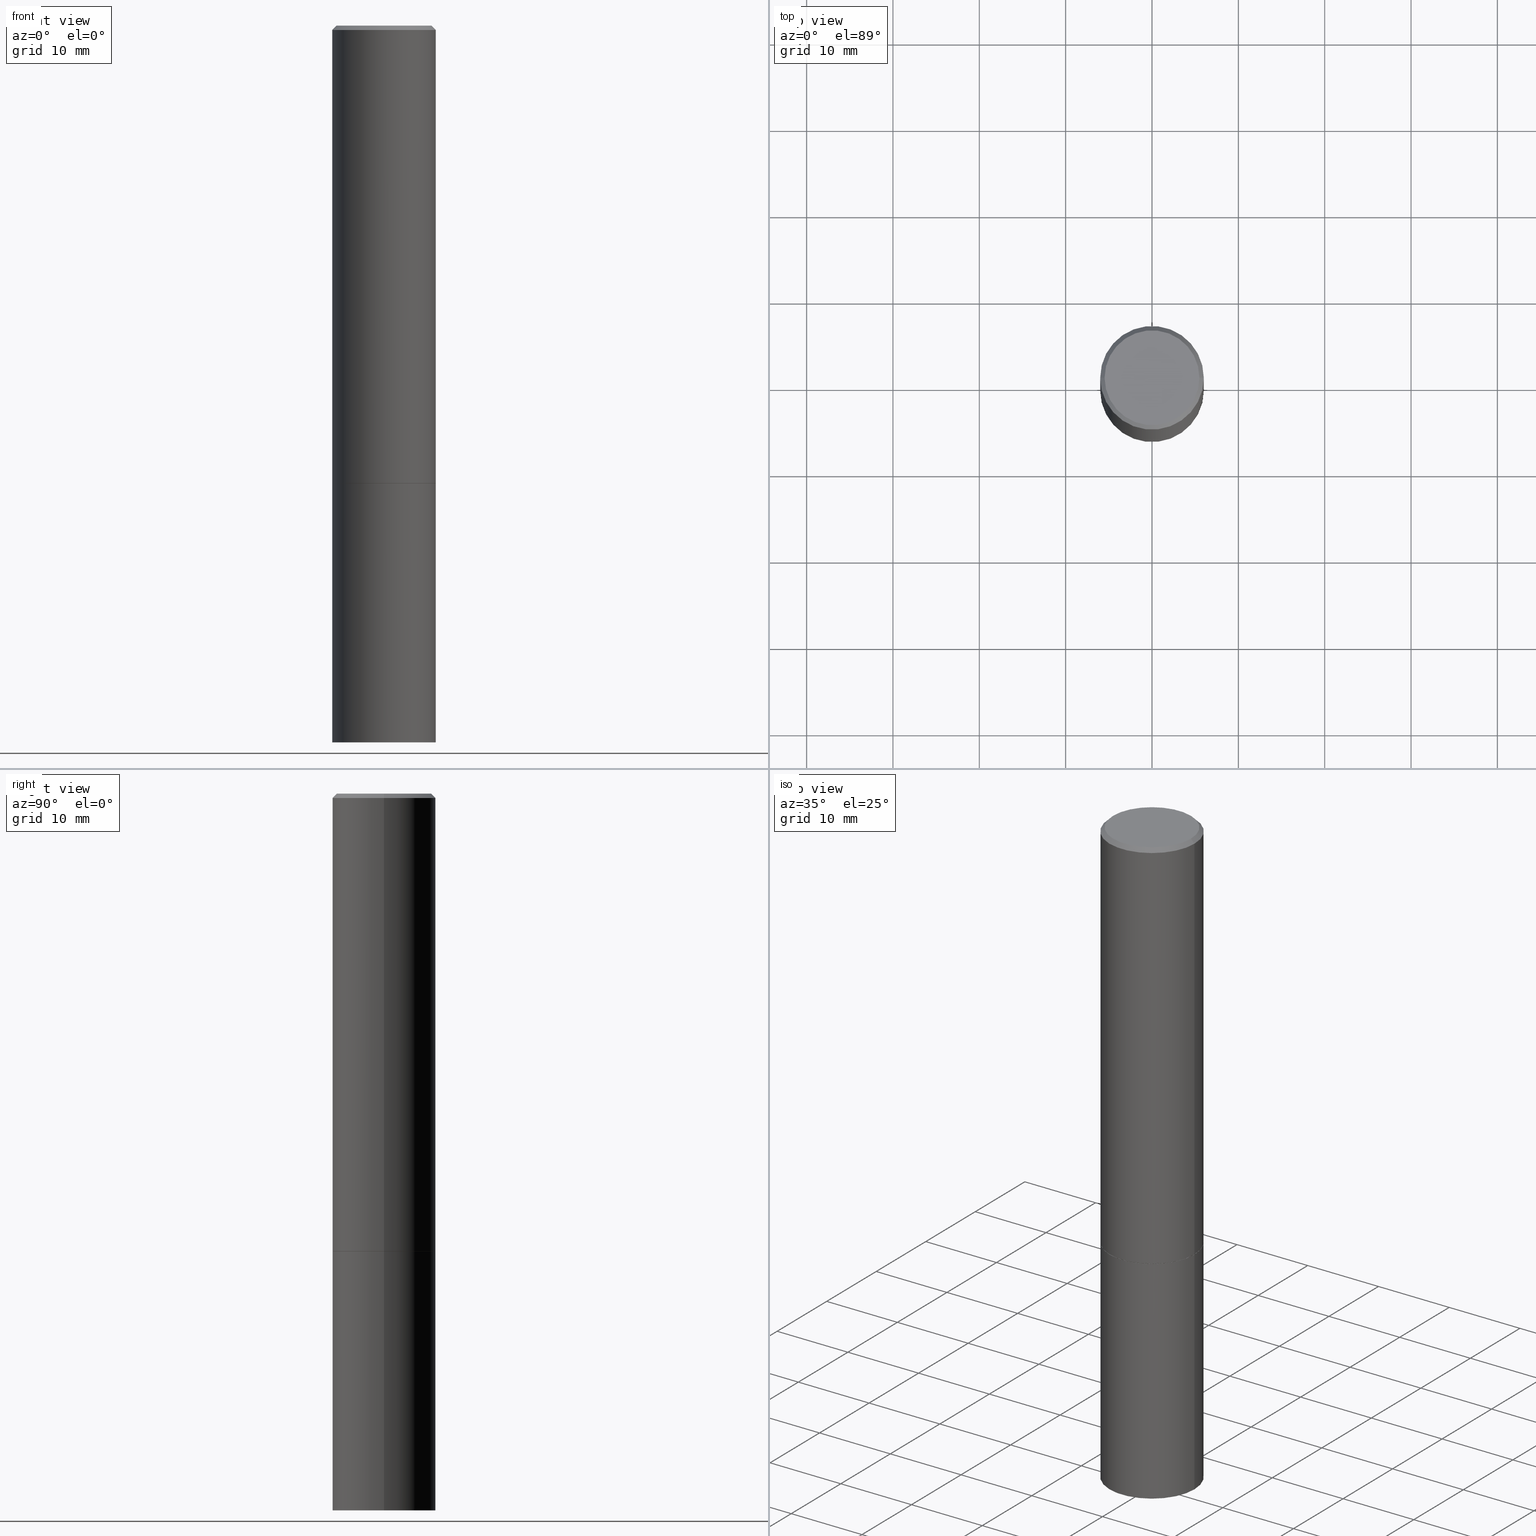
[diagram: canonical four-view strip — front | top / right | iso, engineering-drawing reading convention]
A machine part, canonical four-view strip (front | top / right | iso — engineering-drawing reading convention). The complete STEP part file that produces these views, byte-faithful:
ISO-10303-21;
HEADER;
FILE_DESCRIPTION (( 'STEP AP203' ),
    '1' );
FILE_NAME ('74674.STEP',
    '2024-05-03T15:03:19',
    ( '' ),
    ( '' ),
    'SwSTEP 2.0',
    'SolidWorks 2023',
    '' );
FILE_SCHEMA (( 'CONFIG_CONTROL_DESIGN' ));
ENDSEC;

DATA;
#1 = EDGE_CURVE ( 'NONE', #232, #314, #76, .T. ) ;
#2 = ORIENTED_EDGE ( 'NONE', *, *, #202, .F. ) ;
#3 = DIRECTION ( 'NONE',  ( -1.000000000000000000, 6.982962677686265922E-15, -4.876176775795935793E-29 ) ) ;
#4 = APPLICATION_CONTEXT ( 'configuration controlled 3d designs of mechanical parts and assemblies' ) ;
#5 = CARTESIAN_POINT ( 'NONE',  ( 5.102715210985906276E-29, -7.285324961630107416E-15, -2.086600000000000232 ) ) ;
#6 = CC_DESIGN_DATE_AND_TIME_ASSIGNMENT ( #130, #194, ( #191 ) ) ;
#7 = DIRECTION ( 'NONE',  ( -2.445468806185136597E-29, 3.491481338843145583E-15, 1.000000000000000000 ) ) ;
#8 = DIRECTION ( 'NONE',  ( 1.000000000000000000, -6.982962677686268288E-15, 0.000000000000000000 ) ) ;
#9 = PERSON_AND_ORGANIZATION_ROLE ( 'creator' ) ;
#10 = VERTEX_POINT ( 'NONE', #337 ) ;
#11 = ORIENTED_EDGE ( 'NONE', *, *, #228, .F. ) ;
#12 = CIRCLE ( 'NONE', #242, 0.2361999999999997990 ) ;
#13 = AXIS2_PLACEMENT_3D ( 'NONE', #251, #332, #359 ) ;
#14 = ORIENTED_EDGE ( 'NONE', *, *, #159, .F. ) ;
#15 = PRODUCT_RELATED_PRODUCT_CATEGORY ( 'detail', '', ( #164 ) ) ;
#16 = EDGE_CURVE ( 'NONE', #168, #110, #140, .T. ) ;
#17 = ORGANIZATION ( 'UNSPECIFIED', 'UNSPECIFIED', '' ) ;
#18 = EDGE_CURVE ( 'NONE', #110, #236, #253, .T. ) ;
#19 = CARTESIAN_POINT ( 'NONE',  ( 4.890937612370288047E-31, -6.982962677686311331E-17, -0.02000000000000005940 ) ) ;
#20 = PERSON_AND_ORGANIZATION ( #298, #17 ) ;
#21 = PRODUCT_DEFINITION_SHAPE ( 'NONE', 'NONE',  #131 ) ;
#22 = PERSON_AND_ORGANIZATION ( #298, #17 ) ;
#23 = DIRECTION ( 'NONE',  ( 2.438088387897960049E-29, -3.491481338843145188E-15, -1.000000000000000000 ) ) ;
#24 = CARTESIAN_POINT ( 'NONE',  ( 5.102715210985906276E-29, -7.285324961630107416E-15, -2.086600000000000232 ) ) ;
#25 = APPROVAL_STATUS ( 'not_yet_approved' ) ;
#26 = AXIS2_PLACEMENT_3D ( 'NONE', #238, #207, #261 ) ;
#27 = CIRCLE ( 'NONE', #102, 0.2361999999999999933 ) ;
#28 = VERTEX_POINT ( 'NONE', #32 ) ;
#29 = COORDINATED_UNIVERSAL_TIME_OFFSET ( 5, 0, .BEHIND. ) ;
#30 = ORIENTED_EDGE ( 'NONE', *, *, #155, .T. ) ;
#31 = LINE ( 'NONE', #240, #214 ) ;
#32 = CARTESIAN_POINT ( 'NONE',  ( -0.2161999999999997535, 1.544631344304200395E-15, 2.134256245049137596E-17 ) ) ;
#33 = EDGE_LOOP ( 'NONE', ( #299, #121 ) ) ;
#34 = DIRECTION ( 'NONE',  ( 1.000000000000000000, -6.982962677686266711E-15, 4.876176775795935793E-29 ) ) ;
#35 = DIRECTION ( 'NONE',  ( -2.438088387897960049E-29, 3.491481338843145188E-15, 1.000000000000000000 ) ) ;
#36 = EDGE_CURVE ( 'NONE', #10, #28, #273, .T. ) ;
#37 = DIRECTION ( 'NONE',  ( -2.445468806185136877E-29, 3.491481338843145188E-15, 1.000000000000000000 ) ) ;
#38 = CYLINDRICAL_SURFACE ( 'NONE', #323, 0.2361999999999999933 ) ;
#39 = DIRECTION ( 'NONE',  ( 1.000000000000000000, -6.982962677686267499E-15, 4.876655451117831128E-29 ) ) ;
#40 = ORIENTED_EDGE ( 'NONE', *, *, #190, .F. ) ;
#41 = LINE ( 'NONE', #279, #289 ) ;
#42 = CARTESIAN_POINT ( 'NONE',  ( -0.2361999999999999933, -7.668917324418570534E-15, -3.267700000000000049 ) ) ;
#43 = EDGE_LOOP ( 'NONE', ( #158, #145 ) ) ;
#44 = EDGE_CURVE ( 'NONE', #73, #236, #169, .T. ) ;
#45 =( LENGTH_UNIT ( ) NAMED_UNIT ( * ) SI_UNIT ( $, .METRE. ) );
#46 = APPROVAL ( #230, 'UNSPECIFIED' ) ;
#47 = AXIS2_PLACEMENT_3D ( 'NONE', #269, #86, #200 ) ;
#48 = AXIS2_PLACEMENT_3D ( 'NONE', #118, #344, #95 ) ;
#49 = CC_DESIGN_APPROVAL ( #283, ( #131 ) ) ;
#50 = FACE_OUTER_BOUND ( 'NONE', #66, .T. ) ;
#51 = ORIENTED_EDGE ( 'NONE', *, *, #44, .F. ) ;
#52 = CARTESIAN_POINT ( 'NONE',  ( 0.2351999999999999924, -8.927717783421917927E-15, -2.086600000000000232 ) ) ;
#53 = ORIENTED_EDGE ( 'NONE', *, *, #190, .T. ) ;
#54 = CARTESIAN_POINT ( 'NONE',  ( 5.102715210985906276E-29, -7.285324961630107416E-15, -2.086600000000000232 ) ) ;
#55 = CC_DESIGN_PERSON_AND_ORGANIZATION_ASSIGNMENT ( #358, #341, ( #231 ) ) ;
#56 = ORIENTED_EDGE ( 'NONE', *, *, #36, .F. ) ;
#57 = FACE_OUTER_BOUND ( 'NONE', #184, .T. ) ;
#58 = CIRCLE ( 'NONE', #96, 0.2351999999999999924 ) ;
#59 = ORIENTED_EDGE ( 'NONE', *, *, #217, .T. ) ;
#60 = CARTESIAN_POINT ( 'NONE',  ( 7.991058417971171713E-29, -1.140911357093774644E-14, -3.267700000000000049 ) ) ;
#61 = EDGE_CURVE ( 'NONE', #168, #73, #220, .T. ) ;
#62 = CALENDAR_DATE ( 2024, 3, 5 ) ;
#63 = DIRECTION ( 'NONE',  ( 1.000000000000000000, -6.982962677686264344E-15, 0.000000000000000000 ) ) ;
#64 = CARTESIAN_POINT ( 'NONE',  ( -0.2361999999999999933, 1.678301941865356591E-15, -1.161852468318208757E-29 ) ) ;
#65 = APPROVAL_DATE_TIME ( #258, #83 ) ;
#66 = EDGE_LOOP ( 'NONE', ( #56, #30, #239, #224 ) ) ;
#67 = DIRECTION ( 'NONE',  ( 1.000000000000000000, -6.982962677686265133E-15, 0.000000000000000000 ) ) ;
#68 = CARTESIAN_POINT ( 'NONE',  ( 5.102715210985906276E-29, -7.285324961630107416E-15, -2.086600000000000232 ) ) ;
#69 = VECTOR ( 'NONE', #120, 39.37007874015748143 ) ;
#70 = CARTESIAN_POINT ( 'NONE',  ( 1.509716530915769140E-15, 0.2161999999999997535, -7.441869842326362643E-16 ) ) ;
#71 = COORDINATED_UNIVERSAL_TIME_OFFSET ( 5, 0, .BEHIND. ) ;
#72 = DIRECTION ( 'NONE',  ( 1.000000000000000000, -6.982962677686265133E-15, 0.000000000000000000 ) ) ;
#73 = VERTEX_POINT ( 'NONE', #285 ) ;
#74 = APPROVAL_PERSON_ORGANIZATION ( #20, #283, #129 ) ;
#75 = EDGE_CURVE ( 'NONE', #113, #171, #101, .T. ) ;
#76 = CIRCLE ( 'NONE', #205, 0.2362000000000000210 ) ;
#77 = APPLICATION_PROTOCOL_DEFINITION ( 'international standard', 'config_control_design', 1994, #88 ) ;
#78 = CC_DESIGN_PERSON_AND_ORGANIZATION_ASSIGNMENT ( #320, #9, ( #131 ) ) ;
#79 = CARTESIAN_POINT ( 'NONE',  ( 0.2351999999999999924, -8.927717783421917927E-15, -2.086600000000000232 ) ) ;
#80 = CARTESIAN_POINT ( 'NONE',  ( -5.219257071676098903E-46, 7.451715851902235727E-32, 2.134256245050205639E-17 ) ) ;
#81 = ORIENTED_EDGE ( 'NONE', *, *, #107, .F. ) ;
#82 = DIRECTION ( 'NONE',  ( -2.445468806185136877E-29, 3.491481338843145188E-15, 1.000000000000000000 ) ) ;
#83 = APPROVAL ( #25, 'UNSPECIFIED' ) ;
#84 = CARTESIAN_POINT ( 'NONE',  ( -0.2361999999999999933, -7.668917324418570534E-15, -2.086600000000000232 ) ) ;
#85 = ADVANCED_FACE ( 'NONE', ( #179 ), #364, .T. ) ;
#86 = DIRECTION ( 'NONE',  ( -2.445468806185136597E-29, 3.491481338843145583E-15, 1.000000000000000000 ) ) ;
#87 = ORIENTED_EDGE ( 'NONE', *, *, #150, .T. ) ;
#88 = APPLICATION_CONTEXT ( 'configuration controlled 3d designs of mechanical parts and assemblies' ) ;
#89 = EDGE_CURVE ( 'NONE', #255, #252, #58, .T. ) ;
#90 = CARTESIAN_POINT ( 'NONE',  ( -0.2361999999999997990, 1.579546157692631649E-15, -0.02000000000000005940 ) ) ;
#91 = DIRECTION ( 'NONE',  ( -2.445468806185136597E-29, 3.491481338843145583E-15, 1.000000000000000000 ) ) ;
#92 = DIRECTION ( 'NONE',  ( -2.445468806185136597E-29, 3.491481338843145583E-15, 1.000000000000000000 ) ) ;
#93 = CARTESIAN_POINT ( 'NONE',  ( 5.102715210985906276E-29, -7.285324961630107416E-15, -2.086600000000000232 ) ) ;
#94 = DATE_AND_TIME ( #270, #201 ) ;
#95 = DIRECTION ( 'NONE',  ( -1.000000000000000000, 6.982962677686266711E-15, 0.000000000000000000 ) ) ;
#96 = AXIS2_PLACEMENT_3D ( 'NONE', #24, #181, #148 ) ;
#97 = VECTOR ( 'NONE', #37, 39.37007874015748143 ) ;
#98 = CIRCLE ( 'NONE', #221, 0.2161999999999997535 ) ;
#99 = ADVANCED_FACE ( 'NONE', ( #319 ), #209, .F. ) ;
#100 = LOCAL_TIME ( 11, 3, 19.00000000000000000, #198 ) ;
#101 = CIRCLE ( 'NONE', #47, 0.2361999999999997990 ) ;
#102 = AXIS2_PLACEMENT_3D ( 'NONE', #68, #241, #247 ) ;
#103 = DIRECTION ( 'NONE',  ( 0.7071067811865353603, -2.468850131082130054E-15, 0.7071067811865595631 ) ) ;
#104 = APPROVAL_STATUS ( 'not_yet_approved' ) ;
#105 = CARTESIAN_POINT ( 'NONE',  ( 0.2362000000000000210, -8.931209264760760934E-15, -2.085599999999999898 ) ) ;
#106 = DIRECTION ( 'NONE',  ( 0.000000000000000000, 0.000000000000000000, 1.000000000000000000 ) ) ;
#107 = EDGE_CURVE ( 'NONE', #171, #113, #12, .T. ) ;
#108 = AXIS2_PLACEMENT_3D ( 'NONE', #60, #7, #72 ) ;
#109 = CARTESIAN_POINT ( 'NONE',  ( 7.991058417971171713E-29, -1.140911357093774644E-14, -3.267700000000000049 ) ) ;
#110 = VERTEX_POINT ( 'NONE', #84 ) ;
#111 = APPROVAL_ROLE ( '' ) ;
#112 = ORIENTED_EDGE ( 'NONE', *, *, #355, .F. ) ;
#113 = VERTEX_POINT ( 'NONE', #312 ) ;
#114 = LOCAL_TIME ( 11, 3, 19.00000000000000000, #29 ) ;
#115 = DIRECTION ( 'NONE',  ( -2.445468806185136597E-29, 3.491481338843145583E-15, 1.000000000000000000 ) ) ;
#116 = COORDINATED_UNIVERSAL_TIME_OFFSET ( 5, 0, .BEHIND. ) ;
#117 = ORIENTED_EDGE ( 'NONE', *, *, #278, .F. ) ;
#118 = CARTESIAN_POINT ( 'NONE',  ( 4.890937612370288047E-31, -6.982962677686311331E-17, -0.02000000000000005940 ) ) ;
#119 = DIRECTION ( 'NONE',  ( -2.445468806185136597E-29, 3.491481338843145583E-15, 1.000000000000000000 ) ) ;
#120 = DIRECTION ( 'NONE',  ( 0.7071067811865465735, -7.319954787623252890E-15, -0.7071067811865484609 ) ) ;
#121 = ORIENTED_EDGE ( 'NONE', *, *, #89, .F. ) ;
#122 = MANIFOLD_SOLID_BREP ( 'Body-Move/Copy2[1]', #275 ) ;
#123 = AXIS2_PLACEMENT_3D ( 'NONE', #127, #153, #8 ) ;
#124 = ADVANCED_FACE ( 'NONE', ( #57 ), #156, .T. ) ;
#125 = ORIENTED_EDGE ( 'NONE', *, *, #36, .T. ) ;
#126 = ADVANCED_FACE ( 'NONE', ( #343 ), #38, .T. ) ;
#127 = CARTESIAN_POINT ( 'NONE',  ( 5.102715210985906276E-29, -7.285324961630107416E-15, -2.086600000000000232 ) ) ;
#128 = ADVANCED_FACE ( 'NONE', ( #257 ), #180, .T. ) ;
#129 = APPROVAL_ROLE ( '' ) ;
#130 = DATE_AND_TIME ( #280, #114 ) ;
#131 = PRODUCT_DEFINITION ( 'UNKNOWN', '', #231, #174 ) ;
#132 = DIRECTION ( 'NONE',  ( -1.000000000000000000, 6.982962677686265922E-15, -4.876176775795935793E-29 ) ) ;
#133 = ORIENTED_EDGE ( 'NONE', *, *, #1, .T. ) ;
#134 = AXIS2_PLACEMENT_3D ( 'NONE', #109, #91, #67 ) ;
#135 = AXIS2_PLACEMENT_3D ( 'NONE', #19, #249, #163 ) ;
#136 = DIRECTION ( 'NONE',  ( -2.445468806185136597E-29, 3.491481338843145583E-15, 1.000000000000000000 ) ) ;
#137 = APPROVAL_ROLE ( '' ) ;
#138 = PERSON_AND_ORGANIZATION ( #298, #17 ) ;
#139 = EDGE_LOOP ( 'NONE', ( #288, #351, #360, #260 ) ) ;
#140 = LINE ( 'NONE', #64, #287 ) ;
#141 = SHAPE_DEFINITION_REPRESENTATION ( #21, #248 ) ;
#142 = ORIENTED_EDGE ( 'NONE', *, *, #161, .T. ) ;
#143 = CYLINDRICAL_SURFACE ( 'NONE', #160, 0.2361999999999999378 ) ;
#144 = CARTESIAN_POINT ( 'NONE',  ( -5.219257071676098903E-46, 7.451715851902235727E-32, 2.134256245050205639E-17 ) ) ;
#145 = ORIENTED_EDGE ( 'NONE', *, *, #18, .T. ) ;
#146 = CC_DESIGN_APPROVAL ( #83, ( #231 ) ) ;
#147 = FACE_OUTER_BOUND ( 'NONE', #203, .T. ) ;
#148 = DIRECTION ( 'NONE',  ( 1.000000000000000000, -6.982962677686268288E-15, 0.000000000000000000 ) ) ;
#149 = COORDINATED_UNIVERSAL_TIME_OFFSET ( 5, 0, .BEHIND. ) ;
#150 = EDGE_CURVE ( 'NONE', #73, #168, #256, .T. ) ;
#151 = DIRECTION ( 'NONE',  ( -2.445468806185136877E-29, 3.491481338843145188E-15, 1.000000000000000000 ) ) ;
#152 = CARTESIAN_POINT ( 'NONE',  ( 0.000000000000000000, 0.000000000000000000, 0.000000000000000000 ) ) ;
#153 = DIRECTION ( 'NONE',  ( -2.445468806185136597E-29, 3.491481338843145583E-15, 1.000000000000000000 ) ) ;
#154 = CARTESIAN_POINT ( 'NONE',  ( 0.000000000000000000, 0.000000000000000000, 0.000000000000000000 ) ) ;
#155 = EDGE_CURVE ( 'NONE', #10, #113, #233, .T. ) ;
#156 = CONICAL_SURFACE ( 'NONE', #354, 0.2351999999999999924, 0.7853981633974311816 ) ;
#157 = CONICAL_SURFACE ( 'NONE', #123, 0.2351999999999999924, 0.7853981633974311816 ) ;
#158 = ORIENTED_EDGE ( 'NONE', *, *, #355, .T. ) ;
#159 = EDGE_CURVE ( 'NONE', #232, #171, #185, .T. ) ;
#160 = AXIS2_PLACEMENT_3D ( 'NONE', #301, #115, #34 ) ;
#161 = EDGE_CURVE ( 'NONE', #28, #171, #31, .T. ) ;
#162 = ADVANCED_FACE ( 'NONE', ( #339 ), #143, .T. ) ;
#163 = DIRECTION ( 'NONE',  ( -1.000000000000000000, 6.982962677686266711E-15, 0.000000000000000000 ) ) ;
#164 = PRODUCT ( '74674', '74674', '', ( #357 ) ) ;
#165 = SECURITY_CLASSIFICATION_LEVEL ( 'unclassified' ) ;
#166 = FACE_OUTER_BOUND ( 'NONE', #308, .T. ) ;
#167 = DIRECTION ( 'NONE',  ( 1.000000000000000000, 0.000000000000000000, 0.000000000000000000 ) ) ;
#168 = VERTEX_POINT ( 'NONE', #42 ) ;
#169 = LINE ( 'NONE', #340, #330 ) ;
#170 = DATE_AND_TIME ( #229, #265 ) ;
#171 = VERTEX_POINT ( 'NONE', #90 ) ;
#172 = AXIS2_PLACEMENT_3D ( 'NONE', #93, #35, #318 ) ;
#173 = AXIS2_PLACEMENT_3D ( 'NONE', #281, #23, #132 ) ;
#174 = DESIGN_CONTEXT ( 'detailed design', #88, 'design' ) ;
#175 = PLANE ( 'NONE',  #304 ) ;
#176 = CC_DESIGN_DATE_AND_TIME_ASSIGNMENT ( #170, #335, ( #131 ) ) ;
#177 = ORIENTED_EDGE ( 'NONE', *, *, #278, .T. ) ;
#178 = FACE_OUTER_BOUND ( 'NONE', #244, .T. ) ;
#179 = FACE_OUTER_BOUND ( 'NONE', #139, .T. ) ;
#180 = CYLINDRICAL_SURFACE ( 'NONE', #277, 0.2361999999999999378 ) ;
#181 = DIRECTION ( 'NONE',  ( -2.445468806185136597E-29, 3.491481338843145583E-15, 1.000000000000000000 ) ) ;
#182 =( NAMED_UNIT ( * ) PLANE_ANGLE_UNIT ( ) SI_UNIT ( $, .RADIAN. ) );
#183 = LINE ( 'NONE', #366, #225 ) ;
#184 = EDGE_LOOP ( 'NONE', ( #11, #267, #177, #311 ) ) ;
#185 = LINE ( 'NONE', #322, #97 ) ;
#186 = ORIENTED_EDGE ( 'NONE', *, *, #150, .F. ) ;
#187 = APPROVAL_PERSON_ORGANIZATION ( #250, #83, #111 ) ;
#188 = AXIS2_PLACEMENT_3D ( 'NONE', #271, #212, #237 ) ;
#189 = ADVANCED_FACE ( 'NONE', ( #147 ), #175, .F. ) ;
#190 = EDGE_CURVE ( 'NONE', #314, #113, #183, .T. ) ;
#191 = SECURITY_CLASSIFICATION ( '', '', #165 ) ;
#192 = DIRECTION ( 'NONE',  ( -0.7071067811865353603, 7.493145998870309984E-15, 0.7071067811865595631 ) ) ;
#193 = CARTESIAN_POINT ( 'NONE',  ( 0.000000000000000000, 0.000000000000000000, 0.000000000000000000 ) ) ;
#194 = DATE_TIME_ROLE ( 'classification_date' ) ;
#195 = CARTESIAN_POINT ( 'NONE',  ( -0.2362000000000000210, -1.997529611668705882E-15, -2.085599999999999898 ) ) ;
#196 = ORIENTED_EDGE ( 'NONE', *, *, #75, .F. ) ;
#197 = DIRECTION ( 'NONE',  ( 1.000000000000000000, -6.982962677686264344E-15, 0.000000000000000000 ) ) ;
#198 = COORDINATED_UNIVERSAL_TIME_OFFSET ( 5, 0, .BEHIND. ) ;
#199 = ORIENTED_EDGE ( 'NONE', *, *, #345, .F. ) ;
#200 = DIRECTION ( 'NONE',  ( 1.000000000000000000, -6.982962677686266711E-15, 0.000000000000000000 ) ) ;
#201 = LOCAL_TIME ( 11, 3, 19.00000000000000000, #149 ) ;
#202 = EDGE_CURVE ( 'NONE', #314, #232, #361, .T. ) ;
#203 = EDGE_LOOP ( 'NONE', ( #211, #125 ) ) ;
#204 = DIMENSIONAL_EXPONENTS ( 1.000000000000000000, 0.000000000000000000, 0.000000000000000000, 0.000000000000000000, 0.000000000000000000, 0.000000000000000000, 0.000000000000000000 ) ;
#205 = AXIS2_PLACEMENT_3D ( 'NONE', #342, #92, #197 ) ;
#206 = CARTESIAN_POINT ( 'NONE',  ( 5.100269742179720673E-29, -7.281833480291264409E-15, -2.085599999999999898 ) ) ;
#207 = DIRECTION ( 'NONE',  ( -2.445468806185136597E-29, 3.491481338843145583E-15, 1.000000000000000000 ) ) ;
#208 = ADVANCED_FACE ( 'NONE', ( #178 ), #315, .T. ) ;
#209 = PLANE ( 'NONE',  #172 ) ;
#210 = APPROVAL_DATE_TIME ( #94, #283 ) ;
#211 = ORIENTED_EDGE ( 'NONE', *, *, #345, .T. ) ;
#212 = DIRECTION ( 'NONE',  ( -2.445468806185136597E-29, 3.491481338843145583E-15, 1.000000000000000000 ) ) ;
#213 = CLOSED_SHELL ( 'NONE', ( #353, #162, #246, #208, #128, #124, #99, #189 ) ) ;
#214 = VECTOR ( 'NONE', #268, 39.37007874015748143 ) ;
#215 = CIRCLE ( 'NONE', #188, 0.2351999999999999924 ) ;
#216 = EDGE_LOOP ( 'NONE', ( #59, #325, #2, #117 ) ) ;
#217 = EDGE_CURVE ( 'NONE', #252, #255, #215, .T. ) ;
#218 = AXIS2_PLACEMENT_3D ( 'NONE', #193, #106, #167 ) ;
#219 = LENGTH_MEASURE_WITH_UNIT ( LENGTH_MEASURE( 0.02539999999999999897 ), #45 );
#220 = CIRCLE ( 'NONE', #134, 0.2361999999999999933 ) ;
#221 = AXIS2_PLACEMENT_3D ( 'NONE', #80, #284, #39 ) ;
#222 = PLANE ( 'NONE',  #173 ) ;
#223 = CARTESIAN_POINT ( 'NONE',  ( -0.2351999999999999924, -5.608829992774129628E-15, -2.086600000000000232 ) ) ;
#224 = ORIENTED_EDGE ( 'NONE', *, *, #161, .F. ) ;
#225 = VECTOR ( 'NONE', #151, 39.37007874015748143 ) ;
#226 = DIRECTION ( 'NONE',  ( 1.000000000000000000, -6.982962677686266711E-15, 4.876176775795936353E-29 ) ) ;
#227 = PERSON_AND_ORGANIZATION ( #298, #17 ) ;
#228 = EDGE_CURVE ( 'NONE', #255, #232, #41, .T. ) ;
#229 = CALENDAR_DATE ( 2024, 3, 5 ) ;
#230 = APPROVAL_STATUS ( 'not_yet_approved' ) ;
#231 = PRODUCT_DEFINITION_FORMATION_WITH_SPECIFIED_SOURCE ( 'ANY', '', #164, .NOT_KNOWN. ) ;
#232 = VERTEX_POINT ( 'NONE', #195 ) ;
#233 = LINE ( 'NONE', #348, #69 ) ;
#234 = DIRECTION ( 'NONE',  ( 1.000000000000000000, -6.982962677686265133E-15, 0.000000000000000000 ) ) ;
#235 = CALENDAR_DATE ( 2024, 3, 5 ) ;
#236 = VERTEX_POINT ( 'NONE', #309 ) ;
#237 = DIRECTION ( 'NONE',  ( 1.000000000000000000, -6.982962677686268288E-15, 0.000000000000000000 ) ) ;
#238 = CARTESIAN_POINT ( 'NONE',  ( 0.000000000000000000, 0.000000000000000000, 0.000000000000000000 ) ) ;
#239 = ORIENTED_EDGE ( 'NONE', *, *, #75, .T. ) ;
#240 = CARTESIAN_POINT ( 'NONE',  ( -0.2361999999999997990, 1.579546157692631649E-15, -0.02000000000000005940 ) ) ;
#241 = DIRECTION ( 'NONE',  ( -2.445468806185136597E-29, 3.491481338843145583E-15, 1.000000000000000000 ) ) ;
#242 = AXIS2_PLACEMENT_3D ( 'NONE', #362, #136, #294 ) ;
#243 =( GEOMETRIC_REPRESENTATION_CONTEXT ( 3 ) GLOBAL_UNCERTAINTY_ASSIGNED_CONTEXT ( ( #347 ) ) GLOBAL_UNIT_ASSIGNED_CONTEXT ( ( #328, #182, #329 ) ) REPRESENTATION_CONTEXT ( 'NONE', 'WORKASPACE' ) );
#244 = EDGE_LOOP ( 'NONE', ( #338, #199, #142, #365 ) ) ;
#245 = CC_DESIGN_PERSON_AND_ORGANIZATION_ASSIGNMENT ( #22, #290, ( #231 ) ) ;
#246 = ADVANCED_FACE ( 'NONE', ( #50 ), #305, .T. ) ;
#247 = DIRECTION ( 'NONE',  ( 1.000000000000000000, -6.982962677686265133E-15, 0.000000000000000000 ) ) ;
#248 = ADVANCED_BREP_SHAPE_REPRESENTATION ( '74674', ( #122, #363, #218 ), #243 ) ;
#249 = DIRECTION ( 'NONE',  ( 2.445468806185136597E-29, -3.491481338843145583E-15, -1.000000000000000000 ) ) ;
#250 = PERSON_AND_ORGANIZATION ( #298, #17 ) ;
#251 = CARTESIAN_POINT ( 'NONE',  ( 1.649375784469546815E-15, 0.2361999999999927213, -2.086600000000001121 ) ) ;
#252 = VERTEX_POINT ( 'NONE', #52 ) ;
#253 = CIRCLE ( 'NONE', #303, 0.2361999999999999933 ) ;
#254 = APPLICATION_PROTOCOL_DEFINITION ( 'international standard', 'config_control_design', 1994, #4 ) ;
#255 = VERTEX_POINT ( 'NONE', #223 ) ;
#256 = CIRCLE ( 'NONE', #108, 0.2361999999999999933 ) ;
#257 = FACE_OUTER_BOUND ( 'NONE', #333, .T. ) ;
#258 = DATE_AND_TIME ( #235, #306 ) ;
#259 = PERSON_AND_ORGANIZATION_ROLE ( 'design_owner' ) ;
#260 = ORIENTED_EDGE ( 'NONE', *, *, #18, .F. ) ;
#261 = DIRECTION ( 'NONE',  ( 1.000000000000000000, -6.982962677686266711E-15, 4.876176775795936353E-29 ) ) ;
#262 = DATE_AND_TIME ( #62, #100 ) ;
#263 = ORIENTED_EDGE ( 'NONE', *, *, #202, .T. ) ;
#264 = DIRECTION ( 'NONE',  ( 1.000000000000000000, -6.982962677686267499E-15, 4.876655451117831128E-29 ) ) ;
#265 = LOCAL_TIME ( 11, 3, 19.00000000000000000, #71 ) ;
#266 = ADVANCED_FACE ( 'NONE', ( #166 ), #222, .T. ) ;
#267 = ORIENTED_EDGE ( 'NONE', *, *, #89, .T. ) ;
#268 = DIRECTION ( 'NONE',  ( -0.7071067811865465735, 2.468850131082246805E-15, -0.7071067811865484609 ) ) ;
#269 = CARTESIAN_POINT ( 'NONE',  ( 4.890937612370288047E-31, -6.982962677686311331E-17, -0.02000000000000005940 ) ) ;
#270 = CALENDAR_DATE ( 2024, 3, 5 ) ;
#271 = CARTESIAN_POINT ( 'NONE',  ( 5.102715210985906276E-29, -7.285324961630107416E-15, -2.086600000000000232 ) ) ;
#272 = DIRECTION ( 'NONE',  ( -2.445468806185136597E-29, 3.491481338843145583E-15, 1.000000000000000000 ) ) ;
#273 = CIRCLE ( 'NONE', #349, 0.2161999999999997535 ) ;
#274 = AXIS2_PLACEMENT_3D ( 'NONE', #206, #317, #63 ) ;
#275 = CLOSED_SHELL ( 'NONE', ( #126, #266, #327, #85 ) ) ;
#276 = CC_DESIGN_PERSON_AND_ORGANIZATION_ASSIGNMENT ( #227, #316, ( #191 ) ) ;
#277 = AXIS2_PLACEMENT_3D ( 'NONE', #154, #324, #295 ) ;
#278 = EDGE_CURVE ( 'NONE', #252, #314, #356, .T. ) ;
#279 = CARTESIAN_POINT ( 'NONE',  ( -0.2351999999999999924, -5.614128447122352030E-15, -2.086600000000000232 ) ) ;
#280 = CALENDAR_DATE ( 2024, 3, 5 ) ;
#281 = CARTESIAN_POINT ( 'NONE',  ( 1.649375784469575806E-15, 0.2361999999999885858, -3.267700000000001381 ) ) ;
#282 = EDGE_LOOP ( 'NONE', ( #87, #297, #112, #51 ) ) ;
#283 = APPROVAL ( #104, 'UNSPECIFIED' ) ;
#284 = DIRECTION ( 'NONE',  ( -2.445468806185136597E-29, 3.491481338843145583E-15, 1.000000000000000000 ) ) ;
#285 = CARTESIAN_POINT ( 'NONE',  ( 0.2361999999999999933, -1.305848935540724297E-14, -3.267700000000000049 ) ) ;
#286 = APPROVAL_DATE_TIME ( #262, #46 ) ;
#287 = VECTOR ( 'NONE', #334, 39.37007874015748143 ) ;
#288 = ORIENTED_EDGE ( 'NONE', *, *, #16, .F. ) ;
#289 = VECTOR ( 'NONE', #192, 39.37007874015748854 ) ;
#290 = PERSON_AND_ORGANIZATION_ROLE ( 'design_supplier' ) ;
#291 = ORIENTED_EDGE ( 'NONE', *, *, #159, .T. ) ;
#292 = DIRECTION ( 'NONE',  ( 2.438088387897960049E-29, -3.491481338843145188E-15, -1.000000000000000000 ) ) ;
#293 = DIRECTION ( 'NONE',  ( -2.445468806185136597E-29, 3.491481338843145583E-15, 1.000000000000000000 ) ) ;
#294 = DIRECTION ( 'NONE',  ( 1.000000000000000000, -6.982962677686266711E-15, 0.000000000000000000 ) ) ;
#295 = DIRECTION ( 'NONE',  ( 1.000000000000000000, -6.982962677686266711E-15, 4.876176775795935793E-29 ) ) ;
#296 = DIRECTION ( 'NONE',  ( 1.000000000000000000, -6.982962677686268288E-15, 0.000000000000000000 ) ) ;
#297 = ORIENTED_EDGE ( 'NONE', *, *, #16, .T. ) ;
#298 = PERSON ( 'UNSPECIFIED', 'UNSPECIFIED', 'UNSPECIFIED', ('UNSPECIFIED'), ('UNSPECIFIED'), ('UNSPECIFIED') ) ;
#299 = ORIENTED_EDGE ( 'NONE', *, *, #217, .F. ) ;
#300 = CC_DESIGN_PERSON_AND_ORGANIZATION_ASSIGNMENT ( #138, #259, ( #164 ) ) ;
#301 = CARTESIAN_POINT ( 'NONE',  ( 0.000000000000000000, 0.000000000000000000, 0.000000000000000000 ) ) ;
#302 = EDGE_LOOP ( 'NONE', ( #263, #291, #196, #40 ) ) ;
#303 = AXIS2_PLACEMENT_3D ( 'NONE', #54, #293, #234 ) ;
#304 = AXIS2_PLACEMENT_3D ( 'NONE', #70, #292, #3 ) ;
#305 = CONICAL_SURFACE ( 'NONE', #135, 0.2361999999999997990, 0.7853981633974469467 ) ;
#306 = LOCAL_TIME ( 11, 3, 19.00000000000000000, #116 ) ;
#307 = PLANE ( 'NONE',  #13 ) ;
#308 = EDGE_LOOP ( 'NONE', ( #186, #321 ) ) ;
#309 = CARTESIAN_POINT ( 'NONE',  ( 0.2361999999999999933, -8.934700746099602364E-15, -2.086600000000000232 ) ) ;
#310 = DIRECTION ( 'NONE',  ( -2.445468806185136597E-29, 3.491481338843145583E-15, 1.000000000000000000 ) ) ;
#311 = ORIENTED_EDGE ( 'NONE', *, *, #1, .F. ) ;
#312 = CARTESIAN_POINT ( 'NONE',  ( 0.2361999999999997990, -1.690279253850497391E-15, -0.02000000000000005940 ) ) ;
#313 = PERSON_AND_ORGANIZATION ( #298, #17 ) ;
#314 = VERTEX_POINT ( 'NONE', #105 ) ;
#315 = CONICAL_SURFACE ( 'NONE', #48, 0.2361999999999997990, 0.7853981633974469467 ) ;
#316 = PERSON_AND_ORGANIZATION_ROLE ( 'classification_officer' ) ;
#317 = DIRECTION ( 'NONE',  ( -2.445468806185136597E-29, 3.491481338843145583E-15, 1.000000000000000000 ) ) ;
#318 = DIRECTION ( 'NONE',  ( 1.000000000000000000, -6.982962677686265922E-15, 4.876176775795935793E-29 ) ) ;
#319 = FACE_OUTER_BOUND ( 'NONE', #33, .T. ) ;
#320 = PERSON_AND_ORGANIZATION ( #298, #17 ) ;
#321 = ORIENTED_EDGE ( 'NONE', *, *, #61, .F. ) ;
#322 = CARTESIAN_POINT ( 'NONE',  ( -0.2361999999999999378, 1.678301941865356197E-15, -1.161852468318208476E-29 ) ) ;
#323 = AXIS2_PLACEMENT_3D ( 'NONE', #152, #272, #226 ) ;
#324 = DIRECTION ( 'NONE',  ( -2.445468806185136597E-29, 3.491481338843145583E-15, 1.000000000000000000 ) ) ;
#325 = ORIENTED_EDGE ( 'NONE', *, *, #228, .T. ) ;
#326 = APPROVAL_PERSON_ORGANIZATION ( #313, #46, #137 ) ;
#327 = ADVANCED_FACE ( 'NONE', ( #331 ), #307, .F. ) ;
#328 =( CONVERSION_BASED_UNIT ( 'INCH', #219 ) LENGTH_UNIT ( ) NAMED_UNIT ( #204 ) );
#329 =( NAMED_UNIT ( * ) SI_UNIT ( $, .STERADIAN. ) SOLID_ANGLE_UNIT ( ) );
#330 = VECTOR ( 'NONE', #82, 39.37007874015748143 ) ;
#331 = FACE_OUTER_BOUND ( 'NONE', #43, .T. ) ;
#332 = DIRECTION ( 'NONE',  ( 2.438088387897960049E-29, -3.491481338843145188E-15, -1.000000000000000000 ) ) ;
#333 = EDGE_LOOP ( 'NONE', ( #14, #133, #53, #81 ) ) ;
#334 = DIRECTION ( 'NONE',  ( -2.445468806185136877E-29, 3.491481338843145188E-15, 1.000000000000000000 ) ) ;
#335 = DATE_TIME_ROLE ( 'creation_date' ) ;
#336 = CC_DESIGN_SECURITY_CLASSIFICATION ( #191, ( #231 ) ) ;
#337 = CARTESIAN_POINT ( 'NONE',  ( 0.2161999999999997535, -1.586759460484350410E-15, 2.134256245051288474E-17 ) ) ;
#338 = ORIENTED_EDGE ( 'NONE', *, *, #155, .F. ) ;
#339 = FACE_OUTER_BOUND ( 'NONE', #302, .T. ) ;
#340 = CARTESIAN_POINT ( 'NONE',  ( 0.2361999999999999933, -1.649375784469496131E-15, 1.151752954443000088E-29 ) ) ;
#341 = PERSON_AND_ORGANIZATION_ROLE ( 'creator' ) ;
#342 = CARTESIAN_POINT ( 'NONE',  ( 5.100269742179720673E-29, -7.281833480291264409E-15, -2.085599999999999898 ) ) ;
#343 = FACE_OUTER_BOUND ( 'NONE', #282, .T. ) ;
#344 = DIRECTION ( 'NONE',  ( 2.445468806185136597E-29, -3.491481338843145583E-15, -1.000000000000000000 ) ) ;
#345 = EDGE_CURVE ( 'NONE', #28, #10, #98, .T. ) ;
#346 = FACE_OUTER_BOUND ( 'NONE', #216, .T. ) ;
#347 = UNCERTAINTY_MEASURE_WITH_UNIT (LENGTH_MEASURE( 1.000000000000000082E-05 ), #328, 'distance_accuracy_value', 'NONE');
#348 = CARTESIAN_POINT ( 'NONE',  ( 0.2361999999999997990, -1.690279253850497391E-15, -0.02000000000000005940 ) ) ;
#349 = AXIS2_PLACEMENT_3D ( 'NONE', #144, #310, #264 ) ;
#350 = VECTOR ( 'NONE', #103, 39.37007874015748854 ) ;
#351 = ORIENTED_EDGE ( 'NONE', *, *, #61, .T. ) ;
#352 = CC_DESIGN_APPROVAL ( #46, ( #191 ) ) ;
#353 = ADVANCED_FACE ( 'NONE', ( #346 ), #157, .T. ) ;
#354 = AXIS2_PLACEMENT_3D ( 'NONE', #5, #119, #296 ) ;
#355 = EDGE_CURVE ( 'NONE', #236, #110, #27, .T. ) ;
#356 = LINE ( 'NONE', #79, #350 ) ;
#357 = MECHANICAL_CONTEXT ( 'NONE', #4, 'mechanical' ) ;
#358 = PERSON_AND_ORGANIZATION ( #298, #17 ) ;
#359 = DIRECTION ( 'NONE',  ( -1.000000000000000000, 6.982962677686265922E-15, -4.876176775795935793E-29 ) ) ;
#360 = ORIENTED_EDGE ( 'NONE', *, *, #44, .T. ) ;
#361 = CIRCLE ( 'NONE', #274, 0.2362000000000000210 ) ;
#362 = CARTESIAN_POINT ( 'NONE',  ( 4.890937612370288047E-31, -6.982962677686311331E-17, -0.02000000000000005940 ) ) ;
#363 = MANIFOLD_SOLID_BREP ( 'Body-Move/Copy2[2]', #213 ) ;
#364 = CYLINDRICAL_SURFACE ( 'NONE', #26, 0.2361999999999999933 ) ;
#365 = ORIENTED_EDGE ( 'NONE', *, *, #107, .T. ) ;
#366 = CARTESIAN_POINT ( 'NONE',  ( 0.2361999999999999378, -1.649375784469495736E-15, 1.151752954442999668E-29 ) ) ;
ENDSEC;
END-ISO-10303-21;
